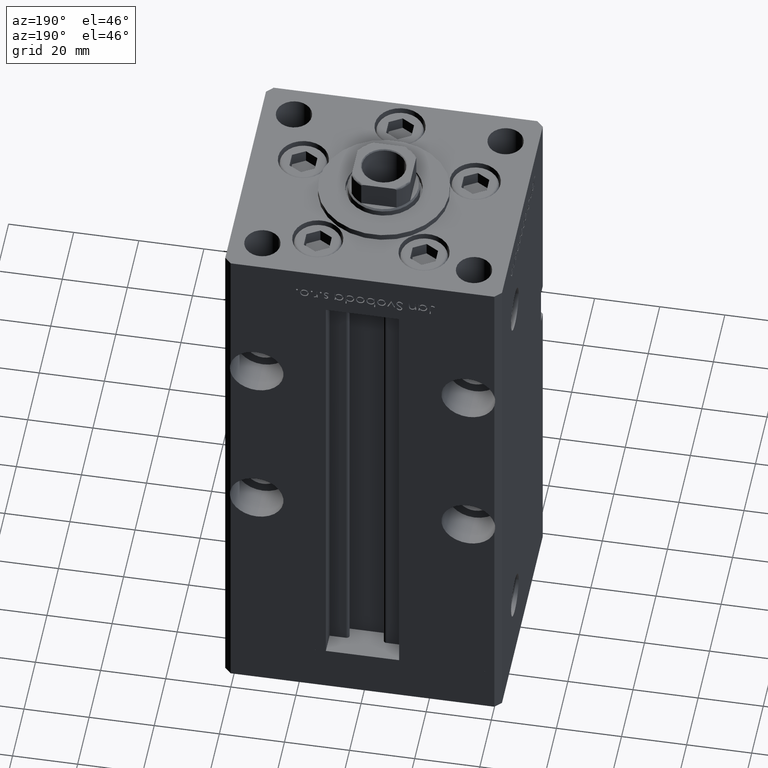
[diagram: clean part render]
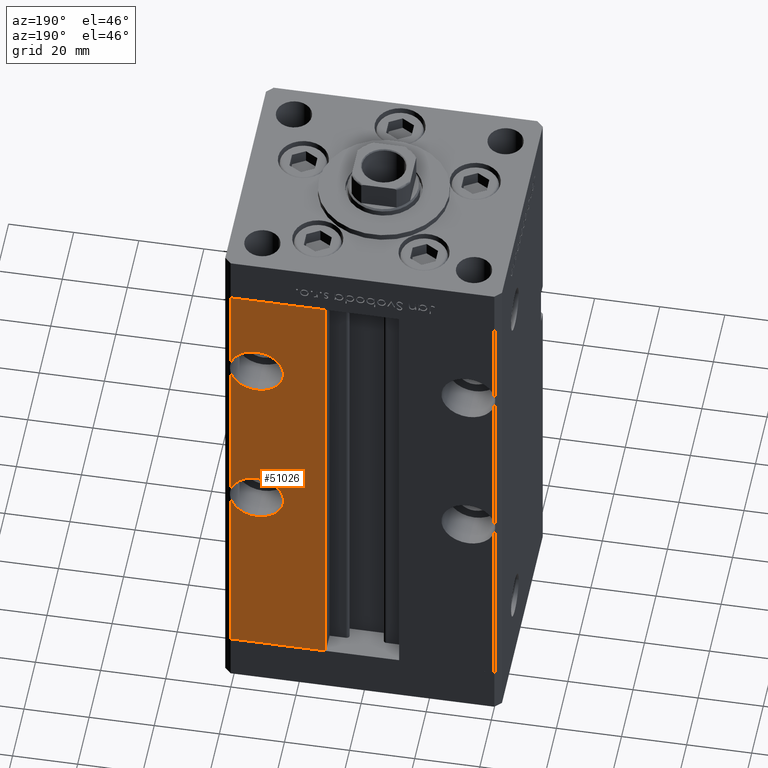
[diagram: same view with one face highlighted and labeled with its STEP entity id]
A machine part, auxiliary view. The second image highlights one B-rep face of the part: STEP entity #51026.
In plain terms, the highlighted planar face has unit normal (0, -1, 0).
Its self-contained STEP definition (entity closure, byte-faithful):
#256 = CARTESIAN_POINT ( 'NONE',  ( 40.50000000000000711, 37.50000000000000000, 148.5000000000000000 ) ) ;
#1859 = VERTEX_POINT ( 'NONE', #27897 ) ;
#2777 = CIRCLE ( 'NONE', #23366, 8.249999999999992895 ) ;
#2853 = FACE_OUTER_BOUND ( 'NONE', #42960, .T. ) ;
#2965 = CARTESIAN_POINT ( 'NONE',  ( 40.50000000000000711, 37.50000000000000000, 115.9844355629253272 ) ) ;
#3359 = VECTOR ( 'NONE', #20598, 1000.000000000000000 ) ;
#3610 = CIRCLE ( 'NONE', #27746, 8.250000000000007105 ) ;
#4060 = CARTESIAN_POINT ( 'NONE',  ( 32.50000000000000000, 37.50000000000000000, 63.00000000000000000 ) ) ;
#4480 = EDGE_CURVE ( 'NONE', #6750, #18105, #2777, .T. ) ;
#4482 = LINE ( 'NONE', #20865, #3359 ) ;
#4494 = CARTESIAN_POINT ( 'NONE',  ( 40.50000000000000711, 37.50000000000000000, 148.5000000000000000 ) ) ;
#5113 = CARTESIAN_POINT ( 'NONE',  ( 32.50000000000000000, 37.50000000000000000, 118.0000000000000000 ) ) ;
#6152 = ORIENTED_EDGE ( 'NONE', *, *, #11262, .F. ) ;
#6750 = VERTEX_POINT ( 'NONE', #29043 ) ;
#7487 = ORIENTED_EDGE ( 'NONE', *, *, #44217, .T. ) ;
#7581 = EDGE_CURVE ( 'NONE', #34934, #26693, #3610, .T. ) ;
#8905 = DIRECTION ( 'NONE',  ( 0.000000000000000000, 0.000000000000000000, 1.000000000000000000 ) ) ;
#9017 = AXIS2_PLACEMENT_3D ( 'NONE', #11699, #18696, #40172 ) ;
#9335 = CARTESIAN_POINT ( 'NONE',  ( 32.50000000000000000, 37.50000000000000000, 63.00000000000000000 ) ) ;
#10598 = DIRECTION ( 'NONE',  ( 0.000000000000000000, 1.000000000000000000, -0.000000000000000000 ) ) ;
#11214 = VECTOR ( 'NONE', #15108, 1000.000000000000000 ) ;
#11255 = ORIENTED_EDGE ( 'NONE', *, *, #51459, .T. ) ;
#11262 = EDGE_CURVE ( 'NONE', #1859, #34934, #44016, .T. ) ;
#11449 = VERTEX_POINT ( 'NONE', #2965 ) ;
#11699 = CARTESIAN_POINT ( 'NONE',  ( -11.24999999999999822, 37.50000000000000000, 148.5000000000000000 ) ) ;
#12407 = CARTESIAN_POINT ( 'NONE',  ( 32.50000000000000000, 37.50000000000000000, 118.0000000000000000 ) ) ;
#13196 = ORIENTED_EDGE ( 'NONE', *, *, #39243, .F. ) ;
#13281 = EDGE_CURVE ( 'NONE', #47618, #19587, #41466, .T. ) ;
#14065 = EDGE_CURVE ( 'NONE', #32477, #38528, #33857, .T. ) ;
#14539 = LINE ( 'NONE', #30938, #36274 ) ;
#15108 = DIRECTION ( 'NONE',  ( -0.000000000000000000, -0.000000000000000000, 1.000000000000000000 ) ) ;
#15364 = ORIENTED_EDGE ( 'NONE', *, *, #14065, .T. ) ;
#15535 = CARTESIAN_POINT ( 'NONE',  ( 11.24999999999999112, 37.50000000000000000, 148.5000000000000000 ) ) ;
#15616 = DIRECTION ( 'NONE',  ( 0.000000000000000000, 0.000000000000000000, -1.000000000000000000 ) ) ;
#15652 = AXIS2_PLACEMENT_3D ( 'NONE', #5113, #22558, #34127 ) ;
#16530 = ORIENTED_EDGE ( 'NONE', *, *, #13281, .F. ) ;
#16843 = DIRECTION ( 'NONE',  ( -0.000000000000000000, -0.000000000000000000, -1.000000000000000000 ) ) ;
#17261 = CARTESIAN_POINT ( 'NONE',  ( 32.50000000000000000, 37.50000000000000000, 71.25000000000000000 ) ) ;
#18105 = VERTEX_POINT ( 'NONE', #42898 ) ;
#18278 = AXIS2_PLACEMENT_3D ( 'NONE', #9335, #42105, #30287 ) ;
#18474 = CARTESIAN_POINT ( 'NONE',  ( 32.50000000000000000, 37.50000000000000000, 118.0000000000000000 ) ) ;
#18696 = DIRECTION ( 'NONE',  ( 0.000000000000000000, -1.000000000000000000, 0.000000000000000000 ) ) ;
#19587 = VERTEX_POINT ( 'NONE', #21537 ) ;
#19745 = PLANE ( 'NONE',  #9017 ) ;
#19906 = DIRECTION ( 'NONE',  ( 0.000000000000000000, 1.000000000000000000, -0.000000000000000000 ) ) ;
#20598 = DIRECTION ( 'NONE',  ( -0.000000000000000000, -0.000000000000000000, -1.000000000000000000 ) ) ;
#20865 = CARTESIAN_POINT ( 'NONE',  ( 40.50000000000000711, 37.50000000000000000, 148.5000000000000000 ) ) ;
#21537 = CARTESIAN_POINT ( 'NONE',  ( 40.50000000000000711, 37.50000000000000000, 65.01556443707460176 ) ) ;
#22558 = DIRECTION ( 'NONE',  ( 0.000000000000000000, 1.000000000000000000, 0.000000000000000000 ) ) ;
#23162 = CARTESIAN_POINT ( 'NONE',  ( 11.24999999999999822, 37.50000000000000000, 0.000000000000000000 ) ) ;
#23366 = AXIS2_PLACEMENT_3D ( 'NONE', #51186, #10598, #26990 ) ;
#24971 = DIRECTION ( 'NONE',  ( -0.000000000000000000, -0.000000000000000000, -1.000000000000000000 ) ) ;
#25707 = EDGE_CURVE ( 'NONE', #6750, #33361, #4482, .T. ) ;
#25786 = ORIENTED_EDGE ( 'NONE', *, *, #25707, .T. ) ;
#26384 = CARTESIAN_POINT ( 'NONE',  ( 40.50000000000000711, 37.50000000000000000, 120.0155644370746586 ) ) ;
#26693 = VERTEX_POINT ( 'NONE', #26384 ) ;
#26990 = DIRECTION ( 'NONE',  ( 0.000000000000000000, 0.000000000000000000, -1.000000000000000000 ) ) ;
#27439 = AXIS2_PLACEMENT_3D ( 'NONE', #4060, #19906, #15616 ) ;
#27578 = CARTESIAN_POINT ( 'NONE',  ( 11.24999999999999822, 37.50000000000000000, 0.000000000000000000 ) ) ;
#27746 = AXIS2_PLACEMENT_3D ( 'NONE', #18474, #34885, #51285 ) ;
#27897 = CARTESIAN_POINT ( 'NONE',  ( 32.50000000000000000, 37.50000000000000000, 109.7499999999999858 ) ) ;
#28894 = ORIENTED_EDGE ( 'NONE', *, *, #4480, .F. ) ;
#29043 = CARTESIAN_POINT ( 'NONE',  ( 40.50000000000000711, 37.50000000000000000, 60.98443556292540535 ) ) ;
#29420 = VECTOR ( 'NONE', #16843, 1000.000000000000000 ) ;
#30287 = DIRECTION ( 'NONE',  ( 0.000000000000000000, 0.000000000000000000, -1.000000000000000000 ) ) ;
#30585 = EDGE_CURVE ( 'NONE', #18105, #47618, #36018, .T. ) ;
#30938 = CARTESIAN_POINT ( 'NONE',  ( -11.24999999999999822, 37.50000000000000000, 0.000000000000000000 ) ) ;
#32477 = VERTEX_POINT ( 'NONE', #15535 ) ;
#33361 = VERTEX_POINT ( 'NONE', #49355 ) ;
#33772 = EDGE_CURVE ( 'NONE', #37490, #32477, #34732, .T. ) ;
#33857 = LINE ( 'NONE', #42179, #51850 ) ;
#34127 = DIRECTION ( 'NONE',  ( 0.000000000000000000, 0.000000000000000000, 1.000000000000000000 ) ) ;
#34732 = LINE ( 'NONE', #23162, #11214 ) ;
#34885 = DIRECTION ( 'NONE',  ( 0.000000000000000000, 1.000000000000000000, 0.000000000000000000 ) ) ;
#34934 = VERTEX_POINT ( 'NONE', #46309 ) ;
#36018 = CIRCLE ( 'NONE', #27439, 8.249999999999992895 ) ;
#36274 = VECTOR ( 'NONE', #47339, 1000.000000000000000 ) ;
#37063 = LINE ( 'NONE', #256, #43357 ) ;
#37490 = VERTEX_POINT ( 'NONE', #27578 ) ;
#37615 = DIRECTION ( 'NONE',  ( 1.000000000000000000, 0.000000000000000000, 0.000000000000000000 ) ) ;
#38528 = VERTEX_POINT ( 'NONE', #48555 ) ;
#38851 = AXIS2_PLACEMENT_3D ( 'NONE', #12407, #50013, #8905 ) ;
#39243 = EDGE_CURVE ( 'NONE', #11449, #1859, #39714, .T. ) ;
#39329 = ORIENTED_EDGE ( 'NONE', *, *, #30585, .F. ) ;
#39714 = CIRCLE ( 'NONE', #15652, 8.250000000000007105 ) ;
#40172 = DIRECTION ( 'NONE',  ( 0.000000000000000000, -0.000000000000000000, -1.000000000000000000 ) ) ;
#41466 = CIRCLE ( 'NONE', #18278, 8.249999999999992895 ) ;
#42105 = DIRECTION ( 'NONE',  ( 0.000000000000000000, 1.000000000000000000, -0.000000000000000000 ) ) ;
#42179 = CARTESIAN_POINT ( 'NONE',  ( -11.24999999999999822, 37.50000000000000000, 148.5000000000000000 ) ) ;
#42898 = CARTESIAN_POINT ( 'NONE',  ( 32.50000000000000000, 37.50000000000000000, 54.75000000000000711 ) ) ;
#42960 = EDGE_LOOP ( 'NONE', ( #11255, #16530, #39329, #28894, #25786, #43443, #44960, #15364, #7487, #49925, #6152, #13196 ) ) ;
#43357 = VECTOR ( 'NONE', #24971, 1000.000000000000000 ) ;
#43443 = ORIENTED_EDGE ( 'NONE', *, *, #44509, .T. ) ;
#44016 = CIRCLE ( 'NONE', #38851, 8.250000000000007105 ) ;
#44217 = EDGE_CURVE ( 'NONE', #38528, #26693, #49389, .T. ) ;
#44509 = EDGE_CURVE ( 'NONE', #33361, #37490, #14539, .T. ) ;
#44960 = ORIENTED_EDGE ( 'NONE', *, *, #33772, .T. ) ;
#46309 = CARTESIAN_POINT ( 'NONE',  ( 32.50000000000000000, 37.50000000000000000, 126.2500000000000000 ) ) ;
#47339 = DIRECTION ( 'NONE',  ( -1.000000000000000000, 0.000000000000000000, 0.000000000000000000 ) ) ;
#47618 = VERTEX_POINT ( 'NONE', #17261 ) ;
#48555 = CARTESIAN_POINT ( 'NONE',  ( 40.50000000000000711, 37.50000000000000000, 148.5000000000000000 ) ) ;
#49355 = CARTESIAN_POINT ( 'NONE',  ( 40.50000000000000711, 37.50000000000000000, 0.000000000000000000 ) ) ;
#49389 = LINE ( 'NONE', #4494, #29420 ) ;
#49925 = ORIENTED_EDGE ( 'NONE', *, *, #7581, .F. ) ;
#50013 = DIRECTION ( 'NONE',  ( 0.000000000000000000, 1.000000000000000000, 0.000000000000000000 ) ) ;
#51026 = ADVANCED_FACE ( 'NONE', ( #2853 ), #19745, .F. ) ;
#51186 = CARTESIAN_POINT ( 'NONE',  ( 32.50000000000000000, 37.50000000000000000, 63.00000000000000000 ) ) ;
#51285 = DIRECTION ( 'NONE',  ( 0.000000000000000000, 0.000000000000000000, 1.000000000000000000 ) ) ;
#51459 = EDGE_CURVE ( 'NONE', #11449, #19587, #37063, .T. ) ;
#51850 = VECTOR ( 'NONE', #37615, 1000.000000000000000 ) ;